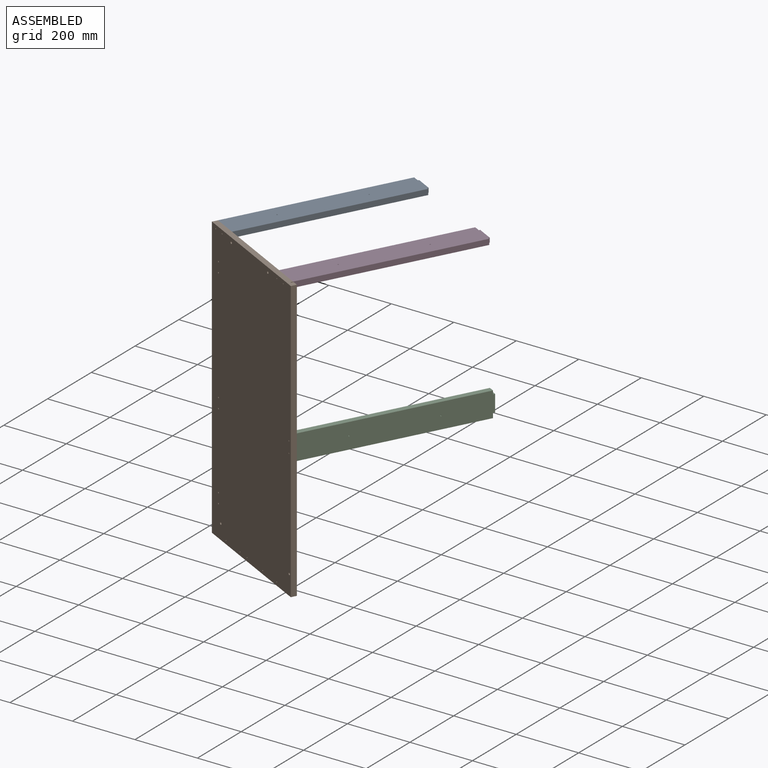
[diagram: assembled view]
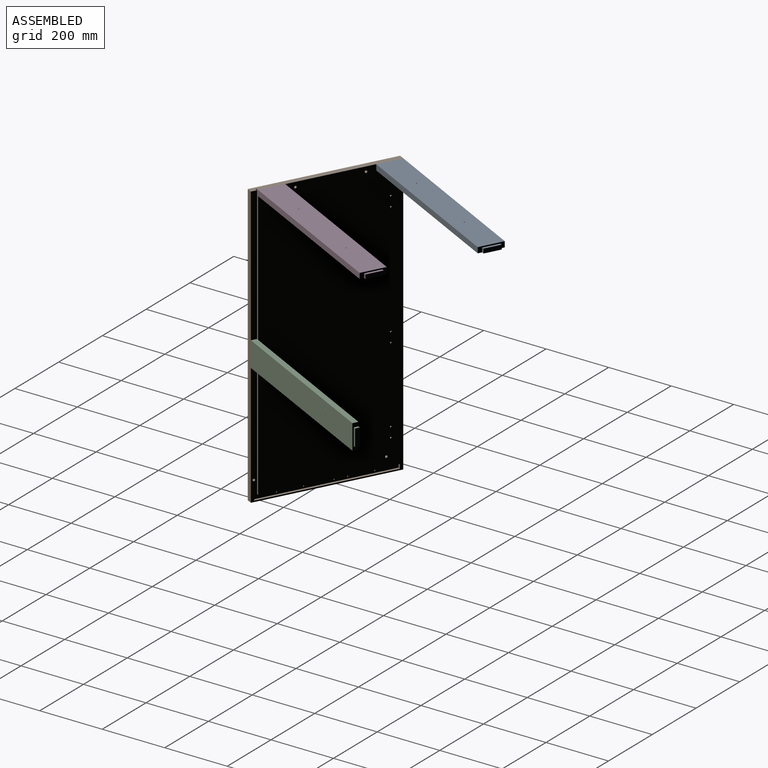
[diagram: assembled view, second angle]
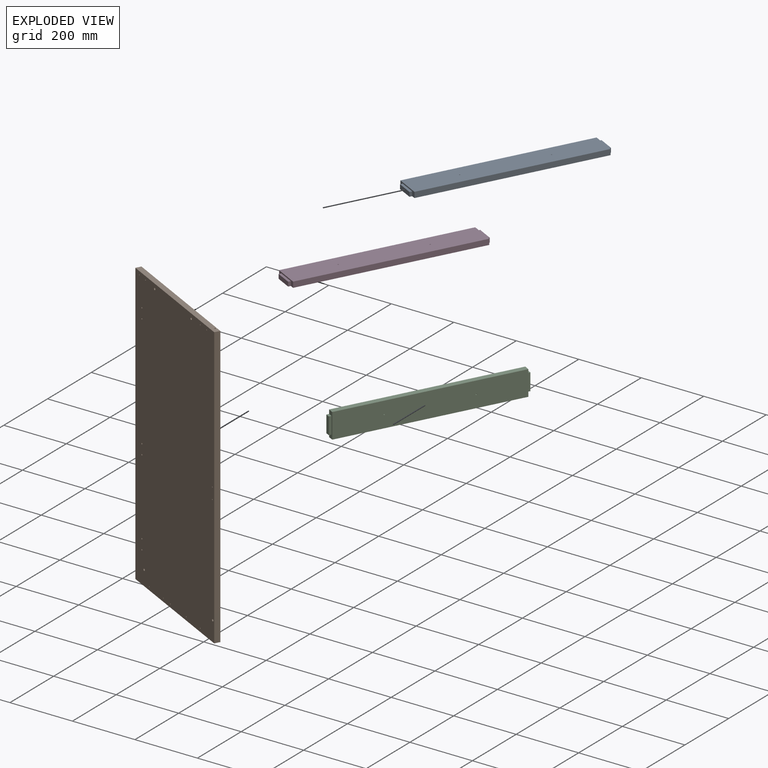
[diagram: exploded view]
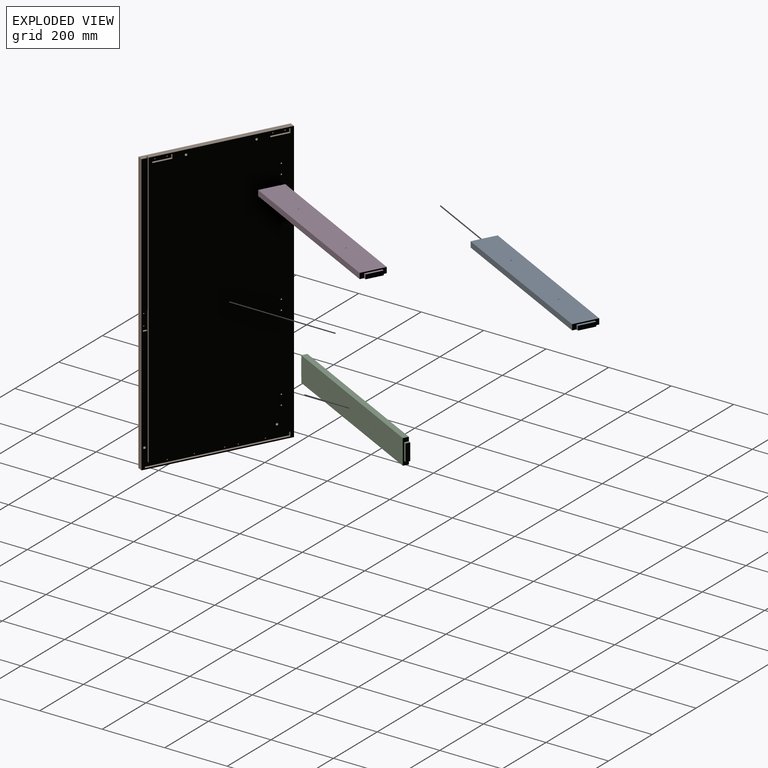
[diagram: exploded view, second angle]
ASSEMBLY  parts=4 mates=3
PART A: 16 faces, bbox 80x595x18 mm
  f0: plane 80x18mm, normal (0,1,0), area 684mm2, adj f1,f4,f6,f7,f8,f10,f11
  f1: plane 579x18mm, normal (-1,0,0), area 10422mm2, adj f0,f2,f6,f7
  f2: plane 80x18mm, normal (0,-1,0), area 684mm2, adj f1,f4,f6,f7,f12,f13,f15
  f3: cylinder r=1.6mm len=18mm, axis (0,0,-1), area 181mm2, adj f6,f7
  f4: plane 579x18mm, normal (1,0,0), area 10422mm2, adj f0,f2,f6,f7
  f5: cylinder r=1.6mm len=18mm, axis (0,0,-1), area 181mm2, adj f6,f7
  f6: plane 579x80mm, normal (0,0,1), area 46303.9mm2, adj f0,f1,f2,f3,f4,f5
  f7: plane 595x80mm, normal (0,0,-1), area 47167.9mm2, adj f0,f1,f2,f3,f4,f5,f8,f9
  f8: plane 14x8mm, normal (1,0,0), area 112mm2, adj f0,f7,f9,f11
  f9: plane 54x14mm, normal (0,1,0), area 756mm2, adj f7,f8,f10,f11
  f10: plane 14x8mm, normal (-1,0,0), area 112mm2, adj f0,f7,f9,f11
  f11: plane 54x8mm, normal (0,0,1), area 432mm2, adj f0,f8,f9,f10
  f12: plane 14x8mm, normal (1,0,0), area 112mm2, adj f2,f7,f14,f15
  f13: plane 14x8mm, normal (-1,0,0), area 112mm2, adj f2,f7,f14,f15
  f14: plane 54x14mm, normal (0,-1,0), area 756mm2, adj f7,f12,f13,f15
  f15: plane 54x8mm, normal (0,0,1), area 432mm2, adj f2,f12,f13,f14
PART B: 49 faces, bbox 900x450x18 mm
  f0: plane 896x436mm, normal (0,0,1), area 9978.9mm2, adj f3,f8,f9,f10,f11,f12,f13,f14
  f1: plane 60x14mm, normal (0,0,1), area 823.9mm2, adj f6,f7,f39,f40,f41,f46
  f2: plane 900x18mm, normal (0,-1,0), area 16200mm2, adj f3,f25,f27,f48
  f3: plane 450x18mm, normal (1,0,0), area 8071.2mm2, adj f0,f2,f4,f27,f32,f33,f48
  f4: plane 900x18mm, normal (0,1,0), area 16200mm2, adj f3,f25,f27,f48
  f5: cylinder r=1.6mm len=10mm, axis (0,0,1), area 100.5mm2, adj f27,f28
  f6: cylinder r=1.6mm len=10mm, axis (0,0,1), area 100.5mm2, adj f1,f27
  f7: cylinder r=1.6mm len=10mm, axis (0,0,1), area 100.5mm2, adj f1,f27
  f8: cylinder r=1.6mm len=10mm, axis (0,0,1), area 100.5mm2, adj f0,f27
  f9: cylinder r=1.6mm len=10mm, axis (0,0,1), area 100.5mm2, adj f0,f27
  f10: cylinder r=1.6mm len=10mm, axis (0,0,1), area 100.5mm2, adj f0,f27
  f11: cylinder r=1.6mm len=10mm, axis (0,0,1), area 100.5mm2, adj f0,f27
  f12: cylinder r=1.6mm len=10mm, axis (0,0,1), area 100.5mm2, adj f0,f27
  f13: cylinder r=1.6mm len=10mm, axis (0,0,1), area 100.5mm2, adj f0,f27
  f14: cylinder r=1.6mm len=10mm, axis (0,0,1), area 100.5mm2, adj f0,f27
  f15: cylinder r=2.3mm len=18mm, axis (0,0,1), area 260.1mm2, adj f27,f48
  f16: cylinder r=2.3mm len=18mm, axis (0,0,1), area 260.1mm2, adj f27,f48
  f17: cylinder r=2.3mm len=18mm, axis (0,0,1), area 260.1mm2, adj f27,f48
  f18: cylinder r=2.3mm len=18mm, axis (0,0,1), area 260.1mm2, adj f27,f48
  f19: cylinder r=2.3mm len=18mm, axis (0,0,1), area 260.1mm2, adj f27,f48
  f20: cylinder r=2.3mm len=18mm, axis (0,0,1), area 260.1mm2, adj f27,f48
  f21: cylinder r=3.85mm len=18mm, axis (0,0,1), area 435.4mm2, adj f27,f48
  f22: cylinder r=3.85mm len=18mm, axis (0,0,1), area 435.4mm2, adj f27,f48
  f23: cylinder r=3.85mm len=18mm, axis (0,0,1), area 435.4mm2, adj f27,f48
  f24: cylinder r=3.85mm len=18mm, axis (0,0,1), area 435.4mm2, adj f27,f48
  f25: plane 450x18mm, normal (-1,0,0), area 8100mm2, adj f2,f4,f27,f48
  f26: cylinder r=1.6mm len=10mm, axis (0,0,1), area 100.5mm2, adj f27,f28
  f27: plane 900x450mm, normal (0,0,-1), area 404625.6mm2, adj f2,f3,f4,f5,f6,f7,f8,f9
  f28: plane 60x14mm, normal (0,0,1), area 823.9mm2, adj f5,f26,f42,f43,f44,f47
  f29: plane 14x8mm, normal (1,0,0), area 112mm2, adj f0,f30,f45,f48
  f30: plane 60x8mm, normal (0,-1,0), area 480mm2, adj f0,f29,f31,f48
  f31: plane 14x8mm, normal (-1,0,0), area 112mm2, adj f0,f30,f32,f48
  f32: plane 440x8mm, normal (0,-1,0), area 3520mm2, adj f0,f3,f31,f48
  f33: plane 882x8mm, normal (0,1,0), area 7056mm2, adj f0,f3,f34,f48
  f34: plane 418.4x8mm, normal (-1,0,0), area 3347.2mm2, adj f0,f33,f35,f48
  f35: plane 14x8mm, normal (0,1,0), area 112mm2, adj f0,f34,f36,f48
  f36: plane 430x8mm, normal (1,0,0), area 3440mm2, adj f0,f35,f37,f48
  f37: plane 14x8mm, normal (0,-1,0), area 112mm2, adj f0,f36,f38,f48
  f38: plane 8x8mm, normal (-1,0,0), area 64mm2, adj f0,f37,f45,f48
  f39: plane 60x8mm, normal (1,0,0), area 480mm2, adj f1,f40,f46,f48
  f40: plane 14x8mm, normal (0,-1,0), area 112mm2, adj f1,f39,f41,f48
  f41: plane 60x8mm, normal (-1,0,0), area 480mm2, adj f1,f40,f46,f48
  f42: plane 60x8mm, normal (1,0,0), area 480mm2, adj f28,f43,f47,f48
  f43: plane 14x8mm, normal (0,-1,0), area 112mm2, adj f28,f42,f44,f48
  f44: plane 60x8mm, normal (-1,0,0), area 480mm2, adj f28,f43,f47,f48
  f45: plane 382x8mm, normal (0,-1,0), area 3056mm2, adj f0,f29,f38,f48
  f46: plane 14x8mm, normal (0,1,0), area 112mm2, adj f1,f39,f41,f48
  f47: plane 14x8mm, normal (0,1,0), area 112mm2, adj f28,f42,f44,f48
  f48: plane 900x450mm, normal (0,0,1), area 392998.8mm2, adj f2,f3,f4,f15,f16,f17,f18,f19
PART C: same geometry as A
PART D: same geometry as A
PLACE A rot(axis=(0,0,-1),27.6deg) t=(18.64,169.67,400)mm
PLACE B rot(axis=(-0.65,-0.39,-0.65),137.1deg) t=(441.74,-60.31,123.67)mm
PLACE C rot(axis=(0.23,0.94,-0.23),93.3deg) t=(445.19,-53.72,37.51)mm
PLACE D rot(axis=(0,0,-1),27.6deg) t=(327.28,8.03,400)mm
MATE fastened D.f14 <-> B.f1  axis (-0.46,-0.89,0) through (403.12,-40.08,407)mm
MATE fastened B.f28 <-> A.f14  axis (0.46,0.89,0) through (94.48,121.55,407)mm
MATE fastened B.f0 <-> C.f14  axis (0.46,0.89,0) through (454.14,-66.81,-52)mm
